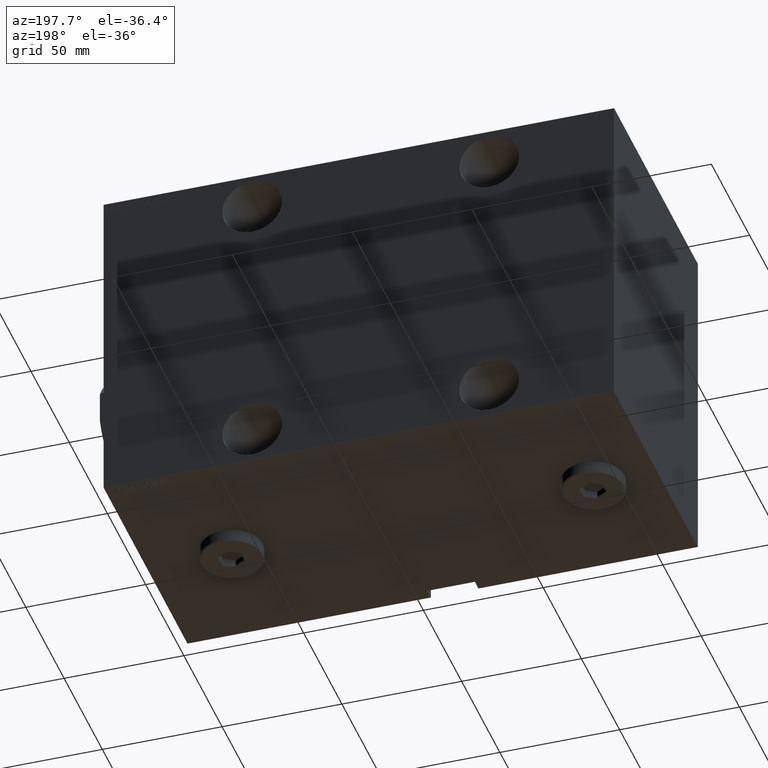
[diagram: clean part render]
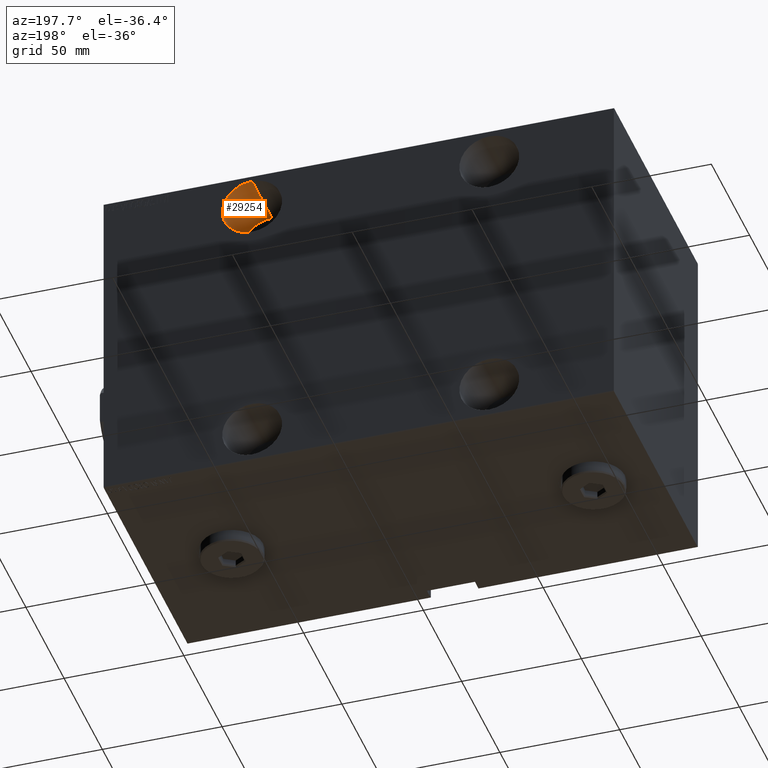
[diagram: same view with one face highlighted and labeled with its STEP entity id]
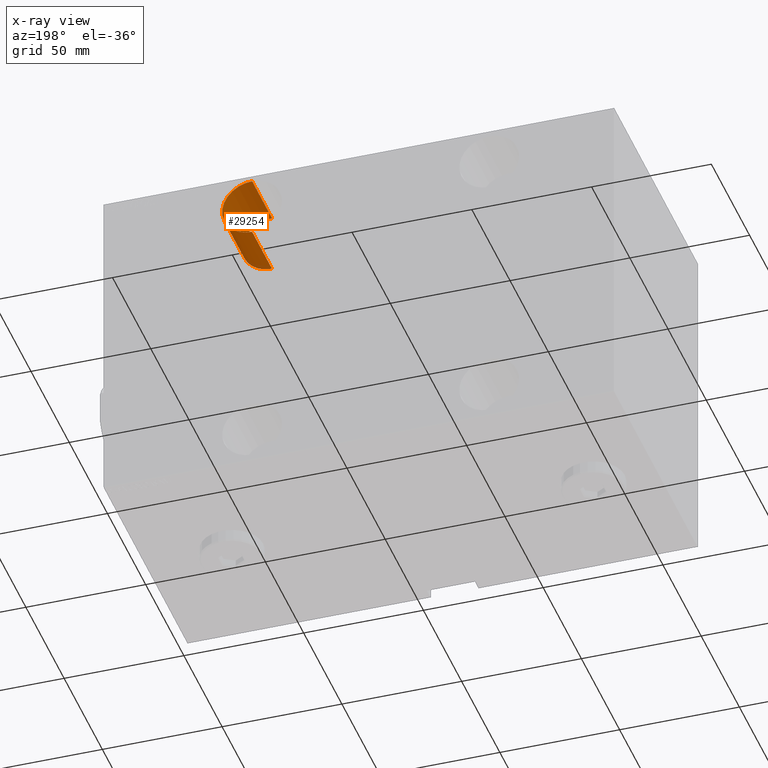
[diagram: x-ray of the same camera — body ghosted, the highlighted face saturated]
A machine part, auxiliary view. The second image highlights one B-rep face of the part: STEP entity #29254.
The next image is the same camera in x-ray: the body ghosted, the highlighted face saturated — about 3% of this face is hidden behind the body in this view.
In plain terms, the highlighted cylindrical surface (edge-blend (fillet) strip) has radius 12.5 mm, axis along (0, 1, -0).
Its self-contained STEP definition (entity closure, byte-faithful):
#1804 = VERTEX_POINT ( 'NONE', #27698 ) ;
#3480 = CARTESIAN_POINT ( 'NONE',  ( 61.99999999999999289, -28.99999999999999289, 54.99999999999999289 ) ) ;
#4303 = AXIS2_PLACEMENT_3D ( 'NONE', #21057, #14106, #17694 ) ;
#5375 = CARTESIAN_POINT ( 'NONE',  ( 61.99999999999999289, -28.99999999999999289, 67.50000000000000000 ) ) ;
#7723 = EDGE_LOOP ( 'NONE', ( #22795, #33556, #16451, #44354 ) ) ;
#8184 = CARTESIAN_POINT ( 'NONE',  ( 61.99999999999999289, -54.99999999999999289, 54.99999999999999289 ) ) ;
#9421 = CIRCLE ( 'NONE', #26618, 12.50000000000001066 ) ;
#9837 = VERTEX_POINT ( 'NONE', #24566 ) ;
#10967 = FACE_OUTER_BOUND ( 'NONE', #7723, .T. ) ;
#12584 = DIRECTION ( 'NONE',  ( -0.000000000000000000, -1.000000000000000000, -0.000000000000000000 ) ) ;
#14106 = DIRECTION ( 'NONE',  ( -0.000000000000000000, -1.000000000000000000, -0.000000000000000000 ) ) ;
#14523 = EDGE_CURVE ( 'NONE', #9837, #1804, #22245, .T. ) ;
#15756 = LINE ( 'NONE', #29429, #27382 ) ;
#16451 = ORIENTED_EDGE ( 'NONE', *, *, #26508, .T. ) ;
#17190 = DIRECTION ( 'NONE',  ( 0.000000000000000000, -1.000000000000000000, 0.000000000000000000 ) ) ;
#17694 = DIRECTION ( 'NONE',  ( 0.000000000000000000, 0.000000000000000000, -1.000000000000000000 ) ) ;
#20913 = VERTEX_POINT ( 'NONE', #22171 ) ;
#21057 = CARTESIAN_POINT ( 'NONE',  ( 61.99999999999999289, -28.99999999999999289, 54.99999999999999289 ) ) ;
#21205 = VECTOR ( 'NONE', #12584, 1000.000000000000000 ) ;
#22171 = CARTESIAN_POINT ( 'NONE',  ( 61.99999999999999289, -28.99999999999999289, 42.49999999999998579 ) ) ;
#22245 = LINE ( 'NONE', #5375, #21205 ) ;
#22356 = VERTEX_POINT ( 'NONE', #26739 ) ;
#22795 = ORIENTED_EDGE ( 'NONE', *, *, #33168, .F. ) ;
#24566 = CARTESIAN_POINT ( 'NONE',  ( 61.99999999999999289, -28.99999999999999289, 67.50000000000000000 ) ) ;
#25631 = DIRECTION ( 'NONE',  ( -0.000000000000000000, -1.000000000000000000, -0.000000000000000000 ) ) ;
#26508 = EDGE_CURVE ( 'NONE', #1804, #22356, #37916, .T. ) ;
#26618 = AXIS2_PLACEMENT_3D ( 'NONE', #3480, #17190, #30865 ) ;
#26739 = CARTESIAN_POINT ( 'NONE',  ( 61.99999999999999289, -54.99999999999999289, 42.49999999999998579 ) ) ;
#27382 = VECTOR ( 'NONE', #25631, 1000.000000000000000 ) ;
#27698 = CARTESIAN_POINT ( 'NONE',  ( 61.99999999999999289, -54.99999999999999289, 67.50000000000000000 ) ) ;
#29254 = ADVANCED_FACE ( 'NONE', ( #10967 ), #34739, .F. ) ;
#29263 = DIRECTION ( 'NONE',  ( 0.000000000000000000, 0.000000000000000000, -1.000000000000000000 ) ) ;
#29429 = CARTESIAN_POINT ( 'NONE',  ( 61.99999999999999289, -28.99999999999999289, 42.49999999999998579 ) ) ;
#30865 = DIRECTION ( 'NONE',  ( 0.000000000000000000, 0.000000000000000000, -1.000000000000000000 ) ) ;
#33168 = EDGE_CURVE ( 'NONE', #9837, #20913, #9421, .T. ) ;
#33556 = ORIENTED_EDGE ( 'NONE', *, *, #14523, .T. ) ;
#34481 = EDGE_CURVE ( 'NONE', #20913, #22356, #15756, .T. ) ;
#34739 = CYLINDRICAL_SURFACE ( 'NONE', #4303, 12.50000000000001066 ) ;
#37916 = CIRCLE ( 'NONE', #41482, 12.50000000000001066 ) ;
#39132 = DIRECTION ( 'NONE',  ( 0.000000000000000000, -1.000000000000000000, 0.000000000000000000 ) ) ;
#41482 = AXIS2_PLACEMENT_3D ( 'NONE', #8184, #39132, #29263 ) ;
#44354 = ORIENTED_EDGE ( 'NONE', *, *, #34481, .F. ) ;